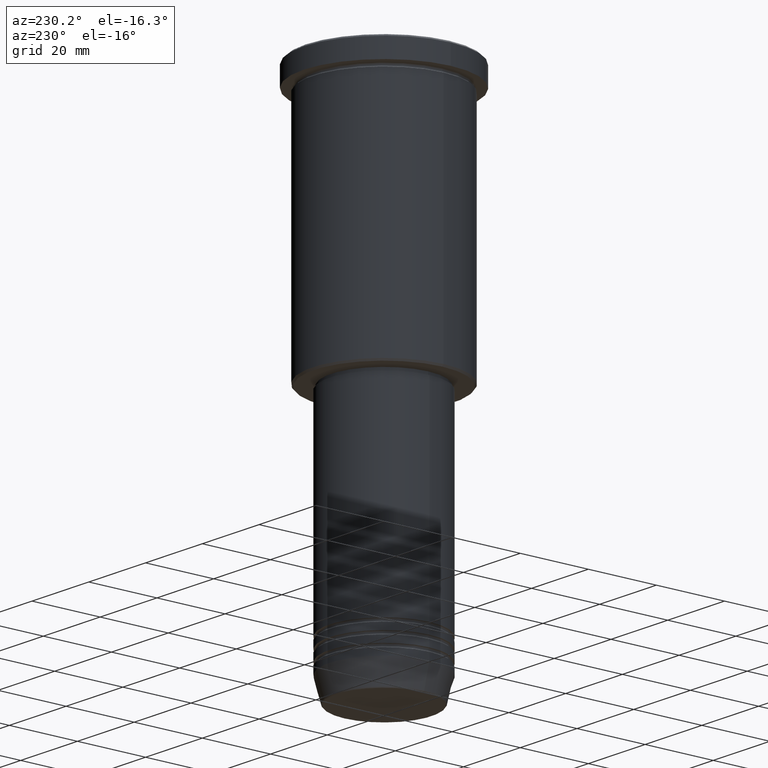
[diagram: clean part render]
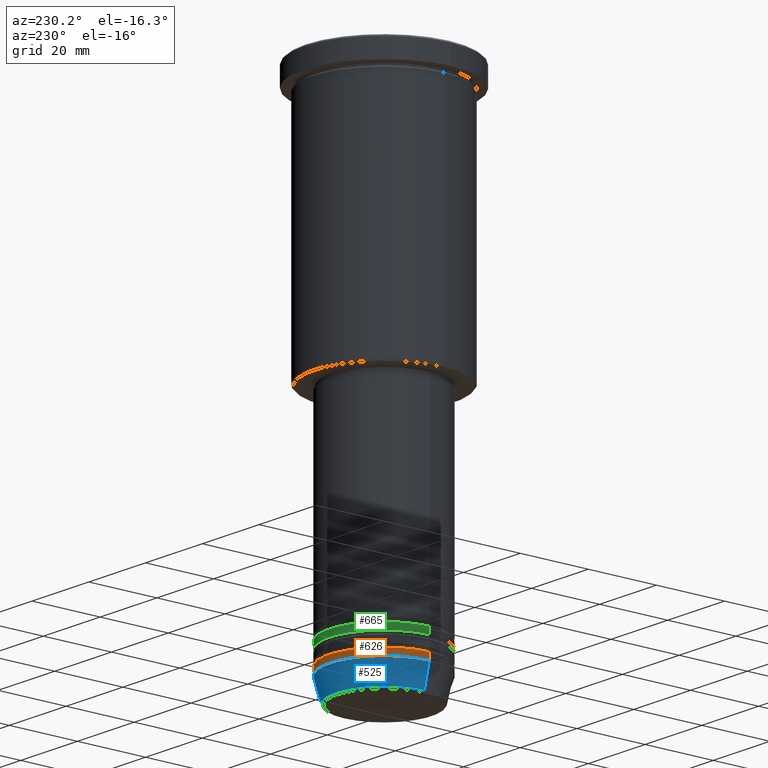
[diagram: same view with three faces highlighted in distinct colors, each labeled with its STEP entity id]
A machine part, auxiliary view with three faces highlighted in distinct colors.
Their STEP definitions:

[orange] entity #626 — the highlighted cylindrical surface (partial cylindrical patch) has radius 16 mm, axis along (-0, -0, 1).
#9 = VERTEX_POINT ( 'NONE', #833 ) ;
#35 = CARTESIAN_POINT ( 'NONE',  ( 0.000000000000000000, 0.000000000000000000, 0.000000000000000000 ) ) ;
#67 = DIRECTION ( 'NONE',  ( -0.000000000000000000, -0.000000000000000000, 1.000000000000000000 ) ) ;
#75 = CARTESIAN_POINT ( 'NONE',  ( 16.00000000000000000, 0.000000000000000000, -144.0000000000000000 ) ) ;
#95 = DIRECTION ( 'NONE',  ( -0.000000000000000000, -0.000000000000000000, 1.000000000000000000 ) ) ;
#137 = CIRCLE ( 'NONE', #1098, 16.00000000000000000 ) ;
#148 = DIRECTION ( 'NONE',  ( -0.000000000000000000, -0.000000000000000000, 1.000000000000000000 ) ) ;
#186 = VERTEX_POINT ( 'NONE', #1086 ) ;
#205 = DIRECTION ( 'NONE',  ( 1.000000000000000000, 0.000000000000000000, 0.000000000000000000 ) ) ;
#223 = EDGE_CURVE ( 'NONE', #186, #926, #570, .T. ) ;
#256 = VECTOR ( 'NONE', #960, 1000.000000000000000 ) ;
#274 = AXIS2_PLACEMENT_3D ( 'NONE', #35, #1055, #1047 ) ;
#326 = ORIENTED_EDGE ( 'NONE', *, *, #223, .F. ) ;
#327 = CARTESIAN_POINT ( 'NONE',  ( 16.00000000000000000, 0.000000000000000000, 0.000000000000000000 ) ) ;
#391 = CARTESIAN_POINT ( 'NONE',  ( 0.000000000000000000, 0.000000000000000000, -144.0000000000000000 ) ) ;
#414 = VECTOR ( 'NONE', #67, 1000.000000000000000 ) ;
#471 = CARTESIAN_POINT ( 'NONE',  ( -16.00000000000000000, 1.959434878635765131E-15, -142.0000000000000000 ) ) ;
#509 = CYLINDRICAL_SURFACE ( 'NONE', #274, 16.00000000000000000 ) ;
#570 = CIRCLE ( 'NONE', #624, 16.00000000000000000 ) ;
#602 = EDGE_LOOP ( 'NONE', ( #823, #953, #326, #851 ) ) ;
#624 = AXIS2_PLACEMENT_3D ( 'NONE', #782, #148, #877 ) ;
#626 = ADVANCED_FACE ( 'NONE', ( #856 ), #509, .T. ) ;
#633 = LINE ( 'NONE', #815, #414 ) ;
#777 = LINE ( 'NONE', #327, #256 ) ;
#782 = CARTESIAN_POINT ( 'NONE',  ( 0.000000000000000000, 0.000000000000000000, -142.0000000000000000 ) ) ;
#796 = EDGE_CURVE ( 'NONE', #9, #926, #633, .T. ) ;
#815 = CARTESIAN_POINT ( 'NONE',  ( -16.00000000000000000, 1.959434878635765131E-15, 0.000000000000000000 ) ) ;
#818 = VERTEX_POINT ( 'NONE', #75 ) ;
#823 = ORIENTED_EDGE ( 'NONE', *, *, #904, .T. ) ;
#833 = CARTESIAN_POINT ( 'NONE',  ( -16.00000000000000000, 1.959434878635765131E-15, -144.0000000000000000 ) ) ;
#851 = ORIENTED_EDGE ( 'NONE', *, *, #1118, .F. ) ;
#856 = FACE_OUTER_BOUND ( 'NONE', #602, .T. ) ;
#877 = DIRECTION ( 'NONE',  ( 1.000000000000000000, 0.000000000000000000, 0.000000000000000000 ) ) ;
#904 = EDGE_CURVE ( 'NONE', #818, #9, #137, .T. ) ;
#926 = VERTEX_POINT ( 'NONE', #471 ) ;
#953 = ORIENTED_EDGE ( 'NONE', *, *, #796, .T. ) ;
#960 = DIRECTION ( 'NONE',  ( -0.000000000000000000, -0.000000000000000000, 1.000000000000000000 ) ) ;
#1047 = DIRECTION ( 'NONE',  ( 1.000000000000000000, 0.000000000000000000, 0.000000000000000000 ) ) ;
#1055 = DIRECTION ( 'NONE',  ( -0.000000000000000000, -0.000000000000000000, 1.000000000000000000 ) ) ;
#1086 = CARTESIAN_POINT ( 'NONE',  ( 16.00000000000000000, 0.000000000000000000, -142.0000000000000000 ) ) ;
#1098 = AXIS2_PLACEMENT_3D ( 'NONE', #391, #95, #205 ) ;
#1118 = EDGE_CURVE ( 'NONE', #818, #186, #777, .T. ) ;

[blue] entity #525 — the highlighted conical surface has half-angle 15 deg.
#9 = VERTEX_POINT ( 'NONE', #833 ) ;
#23 = VECTOR ( 'NONE', #1165, 1000.000000000000000 ) ;
#24 = CARTESIAN_POINT ( 'NONE',  ( 14.22365507213720193, 0.000000000000000000, -150.6294095225512137 ) ) ;
#75 = CARTESIAN_POINT ( 'NONE',  ( 16.00000000000000000, 0.000000000000000000, -144.0000000000000000 ) ) ;
#95 = DIRECTION ( 'NONE',  ( -0.000000000000000000, -0.000000000000000000, 1.000000000000000000 ) ) ;
#107 = VERTEX_POINT ( 'NONE', #24 ) ;
#137 = CIRCLE ( 'NONE', #1098, 16.00000000000000000 ) ;
#172 = DIRECTION ( 'NONE',  ( 1.000000000000000000, 0.000000000000000000, 0.000000000000000000 ) ) ;
#205 = DIRECTION ( 'NONE',  ( 1.000000000000000000, 0.000000000000000000, 0.000000000000000000 ) ) ;
#212 = FACE_OUTER_BOUND ( 'NONE', #991, .T. ) ;
#269 = EDGE_CURVE ( 'NONE', #389, #9, #1015, .T. ) ;
#271 = LINE ( 'NONE', #640, #23 ) ;
#273 = AXIS2_PLACEMENT_3D ( 'NONE', #576, #1122, #172 ) ;
#372 = CONICAL_SURFACE ( 'NONE', #273, 16.00000000000000000, 0.2617993877991496299 ) ;
#389 = VERTEX_POINT ( 'NONE', #631 ) ;
#391 = CARTESIAN_POINT ( 'NONE',  ( 0.000000000000000000, 0.000000000000000000, -144.0000000000000000 ) ) ;
#422 = ORIENTED_EDGE ( 'NONE', *, *, #786, .F. ) ;
#506 = ORIENTED_EDGE ( 'NONE', *, *, #802, .T. ) ;
#525 = ADVANCED_FACE ( 'NONE', ( #212 ), #372, .T. ) ;
#533 = DIRECTION ( 'NONE',  ( -0.2588190451025209615, 3.169619151431767406E-17, 0.9659258262890682012 ) ) ;
#576 = CARTESIAN_POINT ( 'NONE',  ( 0.000000000000000000, 0.000000000000000000, -144.0000000000000000 ) ) ;
#631 = CARTESIAN_POINT ( 'NONE',  ( -14.22365507213720193, 1.850665122131324126E-15, -150.6294095225512137 ) ) ;
#640 = CARTESIAN_POINT ( 'NONE',  ( 16.00000000000000000, 0.000000000000000000, -144.0000000000000000 ) ) ;
#652 = ORIENTED_EDGE ( 'NONE', *, *, #904, .F. ) ;
#654 = CIRCLE ( 'NONE', #1074, 14.22365507213720193 ) ;
#786 = EDGE_CURVE ( 'NONE', #107, #818, #271, .T. ) ;
#802 = EDGE_CURVE ( 'NONE', #107, #389, #654, .T. ) ;
#818 = VERTEX_POINT ( 'NONE', #75 ) ;
#833 = CARTESIAN_POINT ( 'NONE',  ( -16.00000000000000000, 1.959434878635765131E-15, -144.0000000000000000 ) ) ;
#900 = ORIENTED_EDGE ( 'NONE', *, *, #269, .T. ) ;
#904 = EDGE_CURVE ( 'NONE', #818, #9, #137, .T. ) ;
#991 = EDGE_LOOP ( 'NONE', ( #506, #900, #652, #422 ) ) ;
#1015 = LINE ( 'NONE', #1166, #1020 ) ;
#1020 = VECTOR ( 'NONE', #533, 1000.000000000000000 ) ;
#1074 = AXIS2_PLACEMENT_3D ( 'NONE', #1180, #1176, #1170 ) ;
#1098 = AXIS2_PLACEMENT_3D ( 'NONE', #391, #95, #205 ) ;
#1122 = DIRECTION ( 'NONE',  ( -0.000000000000000000, -0.000000000000000000, 1.000000000000000000 ) ) ;
#1165 = DIRECTION ( 'NONE',  ( 0.2588190451025209615, 0.000000000000000000, 0.9659258262890682012 ) ) ;
#1166 = CARTESIAN_POINT ( 'NONE',  ( -16.00000000000000000, 1.959434878635765131E-15, -144.0000000000000000 ) ) ;
#1170 = DIRECTION ( 'NONE',  ( 1.000000000000000000, 0.000000000000000000, 0.000000000000000000 ) ) ;
#1176 = DIRECTION ( 'NONE',  ( -0.000000000000000000, -0.000000000000000000, 1.000000000000000000 ) ) ;
#1180 = CARTESIAN_POINT ( 'NONE',  ( 0.000000000000000000, 0.000000000000000000, -150.6294095225512137 ) ) ;

[green] entity #665 — the highlighted cylindrical surface (partial cylindrical patch) has radius 16 mm, axis along (-0, -0, 1).
#66 = CARTESIAN_POINT ( 'NONE',  ( 16.00000000000000000, 0.000000000000000000, 0.000000000000000000 ) ) ;
#70 = EDGE_CURVE ( 'NONE', #1128, #925, #303, .T. ) ;
#102 = ORIENTED_EDGE ( 'NONE', *, *, #301, .F. ) ;
#118 = CARTESIAN_POINT ( 'NONE',  ( -16.00000000000000000, 1.959434878635765131E-15, -135.9999999999999432 ) ) ;
#150 = LINE ( 'NONE', #66, #746 ) ;
#160 = DIRECTION ( 'NONE',  ( -0.000000000000000000, -0.000000000000000000, 1.000000000000000000 ) ) ;
#169 = DIRECTION ( 'NONE',  ( 1.000000000000000000, 0.000000000000000000, 0.000000000000000000 ) ) ;
#185 = VERTEX_POINT ( 'NONE', #243 ) ;
#204 = DIRECTION ( 'NONE',  ( -0.000000000000000000, -0.000000000000000000, 1.000000000000000000 ) ) ;
#225 = FACE_OUTER_BOUND ( 'NONE', #1032, .T. ) ;
#243 = CARTESIAN_POINT ( 'NONE',  ( 16.00000000000000000, 0.000000000000000000, -135.9999999999999432 ) ) ;
#286 = EDGE_CURVE ( 'NONE', #738, #1128, #769, .T. ) ;
#301 = EDGE_CURVE ( 'NONE', #185, #925, #1175, .T. ) ;
#303 = LINE ( 'NONE', #1024, #643 ) ;
#324 = CARTESIAN_POINT ( 'NONE',  ( 0.000000000000000000, 0.000000000000000000, 0.000000000000000000 ) ) ;
#332 = AXIS2_PLACEMENT_3D ( 'NONE', #324, #1135, #615 ) ;
#340 = DIRECTION ( 'NONE',  ( -0.000000000000000000, -0.000000000000000000, 1.000000000000000000 ) ) ;
#409 = CARTESIAN_POINT ( 'NONE',  ( -16.00000000000000000, 1.959434878635765131E-15, -137.9999999999999432 ) ) ;
#552 = CARTESIAN_POINT ( 'NONE',  ( 0.000000000000000000, 0.000000000000000000, -135.9999999999999432 ) ) ;
#565 = ORIENTED_EDGE ( 'NONE', *, *, #70, .T. ) ;
#609 = AXIS2_PLACEMENT_3D ( 'NONE', #1070, #160, #616 ) ;
#615 = DIRECTION ( 'NONE',  ( 1.000000000000000000, 0.000000000000000000, 0.000000000000000000 ) ) ;
#616 = DIRECTION ( 'NONE',  ( 1.000000000000000000, 0.000000000000000000, 0.000000000000000000 ) ) ;
#643 = VECTOR ( 'NONE', #204, 1000.000000000000000 ) ;
#665 = ADVANCED_FACE ( 'NONE', ( #225 ), #697, .T. ) ;
#697 = CYLINDRICAL_SURFACE ( 'NONE', #332, 16.00000000000000000 ) ;
#719 = DIRECTION ( 'NONE',  ( -0.000000000000000000, -0.000000000000000000, 1.000000000000000000 ) ) ;
#738 = VERTEX_POINT ( 'NONE', #1094 ) ;
#746 = VECTOR ( 'NONE', #719, 1000.000000000000000 ) ;
#751 = AXIS2_PLACEMENT_3D ( 'NONE', #552, #340, #169 ) ;
#765 = ORIENTED_EDGE ( 'NONE', *, *, #286, .T. ) ;
#769 = CIRCLE ( 'NONE', #609, 16.00000000000000000 ) ;
#925 = VERTEX_POINT ( 'NONE', #118 ) ;
#1024 = CARTESIAN_POINT ( 'NONE',  ( -16.00000000000000000, 1.959434878635765131E-15, 0.000000000000000000 ) ) ;
#1032 = EDGE_LOOP ( 'NONE', ( #765, #565, #102, #1102 ) ) ;
#1070 = CARTESIAN_POINT ( 'NONE',  ( 0.000000000000000000, 0.000000000000000000, -137.9999999999999432 ) ) ;
#1094 = CARTESIAN_POINT ( 'NONE',  ( 16.00000000000000000, 0.000000000000000000, -137.9999999999999432 ) ) ;
#1102 = ORIENTED_EDGE ( 'NONE', *, *, #1168, .F. ) ;
#1128 = VERTEX_POINT ( 'NONE', #409 ) ;
#1135 = DIRECTION ( 'NONE',  ( -0.000000000000000000, -0.000000000000000000, 1.000000000000000000 ) ) ;
#1168 = EDGE_CURVE ( 'NONE', #738, #185, #150, .T. ) ;
#1175 = CIRCLE ( 'NONE', #751, 16.00000000000000000 ) ;